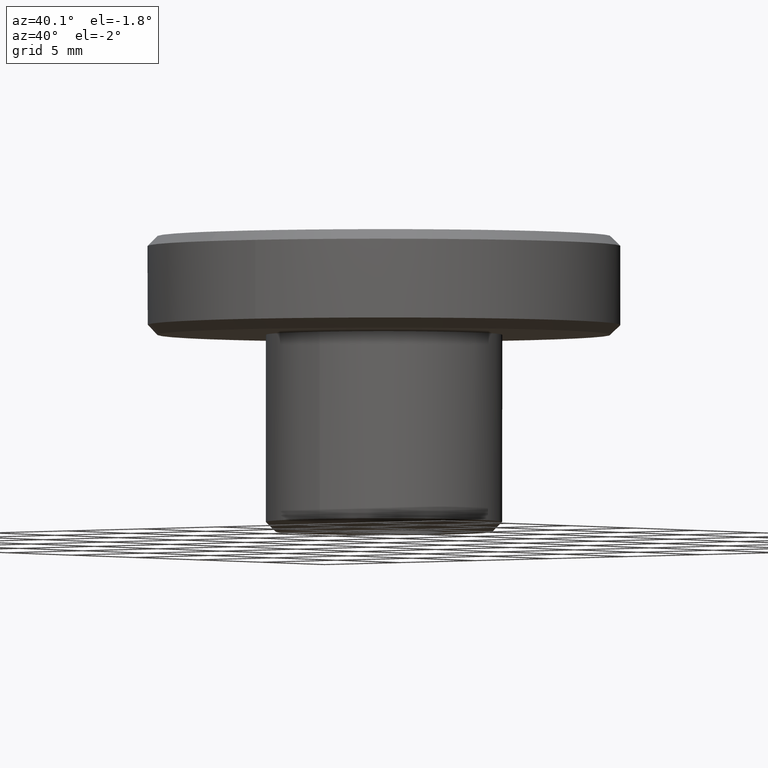
[diagram: clean part render]
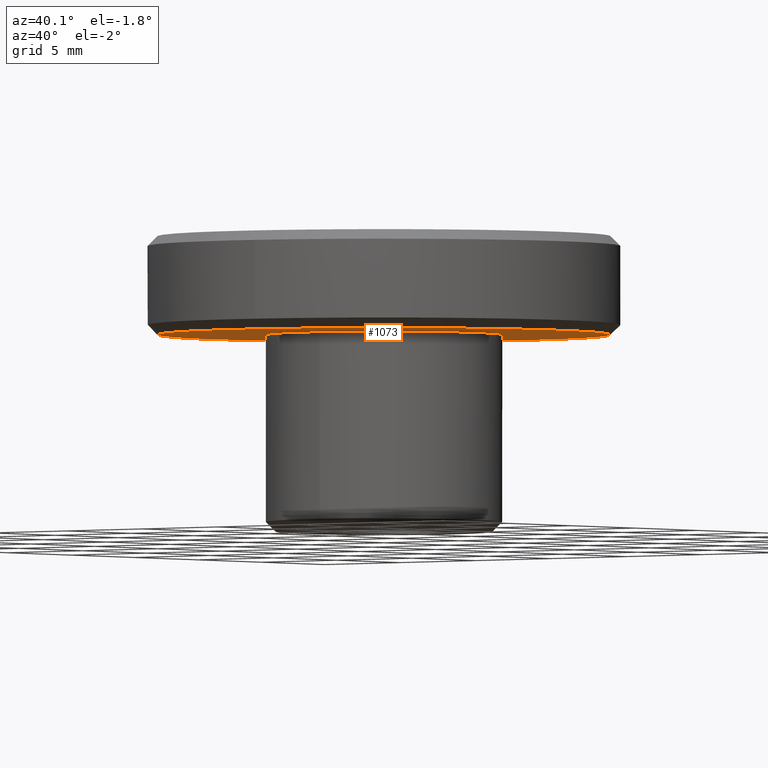
[diagram: same view with one face highlighted and labeled with its STEP entity id]
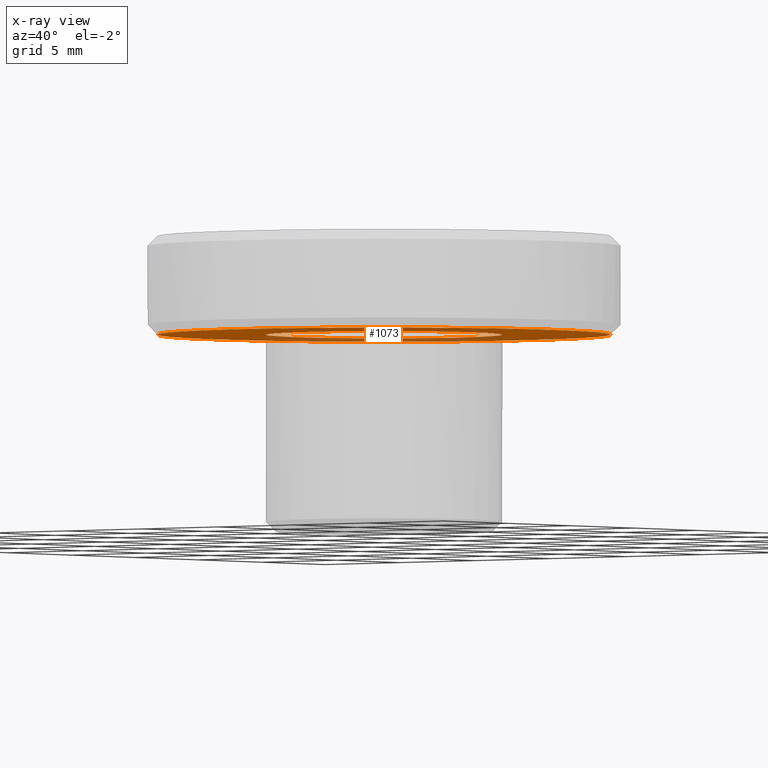
[diagram: x-ray of the same camera — body ghosted, the highlighted face saturated]
A machine part, auxiliary view. The second image highlights one B-rep face of the part: STEP entity #1073.
The next image is the same camera in x-ray: the body ghosted, the highlighted face saturated — about 24% of this face is hidden behind the body in this view.
In plain terms, the highlighted face is a freeform B-spline surface patch.
Its self-contained STEP definition (entity closure, byte-faithful):
#286=CARTESIAN_POINT('',(11.500000000000000,0.0,10.0));
#287=VERTEX_POINT('',#286);
#288=CARTESIAN_POINT('',(9.416960296174537,-6.600822583608174,10.000000000000030));
#289=VERTEX_POINT('',#288);
#290=CARTESIAN_POINT('',(11.500000000000000,0.0,10.0));
#291=CARTESIAN_POINT('',(11.500000000000000,-3.629086570737413,10.000000000000002));
#292=CARTESIAN_POINT('',(9.416960296174537,-6.600822583608175,10.000000000000030));
#300=(BOUNDED_CURVE()B_SPLINE_CURVE(2,(#290,#291,#292),.UNSPECIFIED.,.F.,.U.)B_SPLINE_CURVE_WITH_KNOTS((3,3),(0.0,0.098673726202874),.UNSPECIFIED.)CURVE()GEOMETRIC_REPRESENTATION_ITEM()RATIONAL_B_SPLINE_CURVE((1.0,0.884396538880492,0.860049271925871))REPRESENTATION_ITEM(''));
#301=EDGE_CURVE('',#287,#289,#300,.T.);
#303=CARTESIAN_POINT('',(-11.500000000000000,0.0,10.0));
#304=VERTEX_POINT('',#303);
#305=CARTESIAN_POINT('',(-11.500000000000000,0.0,10.0));
#306=CARTESIAN_POINT('',(-11.500000000000000,11.500000000000000,10.000000000000002));
#307=CARTESIAN_POINT('',(0.0,11.500000000000000,10.0));
#308=CARTESIAN_POINT('',(11.500000000000000,11.500000000000000,10.000000000000002));
#309=CARTESIAN_POINT('',(11.500000000000000,0.0,10.0));
#317=(BOUNDED_CURVE()B_SPLINE_CURVE(2,(#305,#306,#307,#308,#309),.UNSPECIFIED.,.F.,.U.)B_SPLINE_CURVE_WITH_KNOTS((3,2,3),(0.500000000000000,0.750000000000000,1.0),.UNSPECIFIED.)CURVE()GEOMETRIC_REPRESENTATION_ITEM()RATIONAL_B_SPLINE_CURVE((1.0,0.707106781186548,1.0,0.707106781186548,1.0))REPRESENTATION_ITEM(''));
#318=EDGE_CURVE('',#304,#287,#317,.T.);
#320=CARTESIAN_POINT('',(0.100355158253233,-11.499562115240730,10.000000000003020));
#321=VERTEX_POINT('',#320);
#322=CARTESIAN_POINT('',(0.100355158253233,-11.499562115240732,10.000000000003018));
#323=CARTESIAN_POINT('',(0.050178534459976,-11.500000000000004,10.0));
#324=CARTESIAN_POINT('',(0.0,-11.500000000000000,10.0));
#325=CARTESIAN_POINT('',(-11.500000000000000,-11.500000000000000,10.000000000000002));
#326=CARTESIAN_POINT('',(-11.500000000000000,0.0,10.0));
#334=(BOUNDED_CURVE()B_SPLINE_CURVE(2,(#322,#323,#324,#325,#326),.UNSPECIFIED.,.F.,.U.)B_SPLINE_CURVE_WITH_KNOTS((3,2,3),(0.248460105664342,0.250000000000000,0.500000000000000),.UNSPECIFIED.)CURVE()GEOMETRIC_REPRESENTATION_ITEM()RATIONAL_B_SPLINE_CURVE((0.996414028098853,0.998195901565586,1.0,0.707106781186548,1.0))REPRESENTATION_ITEM(''));
#335=EDGE_CURVE('',#321,#304,#334,.T.);
#430=CARTESIAN_POINT('',(9.416960296174537,-6.600822583608174,10.000000000000032));
#431=CARTESIAN_POINT('',(6.019393967060633,-11.447907446082395,9.999999999999998));
#432=CARTESIAN_POINT('',(0.100355158253233,-11.499562115240730,10.000000000003018));
#440=(BOUNDED_CURVE()B_SPLINE_CURVE(2,(#430,#431,#432),.UNSPECIFIED.,.F.,.U.)B_SPLINE_CURVE_WITH_KNOTS((3,3),(0.098673726202873,0.248460105664342),.UNSPECIFIED.)CURVE()GEOMETRIC_REPRESENTATION_ITEM()RATIONAL_B_SPLINE_CURVE((0.860049271925871,0.823090203820786,0.996414028098853))REPRESENTATION_ITEM(''));
#441=EDGE_CURVE('',#289,#321,#440,.T.);
#879=CARTESIAN_POINT('',(-0.052354501206624,5.999771579500440,10.000000000000121));
#880=VERTEX_POINT('',#879);
#886=CARTESIAN_POINT('',(6.0,0.0,10.000000000000121));
#887=VERTEX_POINT('',#886);
#888=CARTESIAN_POINT('',(-0.052354501206624,5.999771579500440,10.000000000000121));
#889=CARTESIAN_POINT('',(-0.026177748897856,6.0,10.000000000000121));
#890=CARTESIAN_POINT('',(0.0,6.0,10.000000000000121));
#891=CARTESIAN_POINT('',(6.0,6.0,10.000000000000121));
#892=CARTESIAN_POINT('',(6.0,0.0,10.000000000000121));
#900=(BOUNDED_CURVE()B_SPLINE_CURVE(2,(#888,#889,#890,#891,#892),.UNSPECIFIED.,.F.,.U.)B_SPLINE_CURVE_WITH_KNOTS((3,2,3),(0.248460243994745,0.250000000000000,0.500000000000000),.UNSPECIFIED.)CURVE()GEOMETRIC_REPRESENTATION_ITEM()RATIONAL_B_SPLINE_CURVE((0.996414348234342,0.998196063629734,1.0,0.707106781186548,1.0))REPRESENTATION_ITEM(''));
#901=EDGE_CURVE('',#880,#887,#900,.T.);
#903=CARTESIAN_POINT('',(0.744762948384162,-5.953597916444146,10.000000000000121));
#904=VERTEX_POINT('',#903);
#905=CARTESIAN_POINT('',(6.0,0.0,10.000000000000121));
#906=CARTESIAN_POINT('',(6.0,-5.296196140923553,10.000000000000119));
#907=CARTESIAN_POINT('',(0.744762948384162,-5.953597916444146,10.000000000000123));
#915=(BOUNDED_CURVE()B_SPLINE_CURVE(2,(#905,#906,#907),.UNSPECIFIED.,.F.,.U.)B_SPLINE_CURVE_WITH_KNOTS((3,3),(0.500000000000000,0.728526214478538),.UNSPECIFIED.)CURVE()GEOMETRIC_REPRESENTATION_ITEM()RATIONAL_B_SPLINE_CURVE((1.0,0.732264885832511,0.954005708654425))REPRESENTATION_ITEM(''));
#916=EDGE_CURVE('',#887,#904,#915,.T.);
#951=CARTESIAN_POINT('',(-6.0,0.0,10.000000000000121));
#952=VERTEX_POINT('',#951);
#953=CARTESIAN_POINT('',(0.744762948384162,-5.953597916444146,10.000000000000123));
#954=CARTESIAN_POINT('',(0.373827003513187,-6.000000000000001,10.000000000000123));
#955=CARTESIAN_POINT('',(0.0,-6.0,10.000000000000121));
#956=CARTESIAN_POINT('',(-6.0,-6.0,10.000000000000121));
#957=CARTESIAN_POINT('',(-6.0,0.0,10.000000000000121));
#965=(BOUNDED_CURVE()B_SPLINE_CURVE(2,(#953,#954,#955,#956,#957),.UNSPECIFIED.,.F.,.U.)B_SPLINE_CURVE_WITH_KNOTS((3,2,3),(0.728526214478538,0.750000000000000,1.0),.UNSPECIFIED.)CURVE()GEOMETRIC_REPRESENTATION_ITEM()RATIONAL_B_SPLINE_CURVE((0.954005708654425,0.974841895354037,1.0,0.707106781186548,1.0))REPRESENTATION_ITEM(''));
#966=EDGE_CURVE('',#904,#952,#965,.T.);
#968=CARTESIAN_POINT('',(-6.0,0.0,10.000000000000121));
#969=CARTESIAN_POINT('',(-6.000000000000002,5.947871934771303,10.000000000000123));
#970=CARTESIAN_POINT('',(-0.052354501206624,5.999771579500440,10.000000000000121));
#978=(BOUNDED_CURVE()B_SPLINE_CURVE(2,(#968,#969,#970),.UNSPECIFIED.,.F.,.U.)B_SPLINE_CURVE_WITH_KNOTS((3,3),(0.0,0.248460243994745),.UNSPECIFIED.)CURVE()GEOMETRIC_REPRESENTATION_ITEM()RATIONAL_B_SPLINE_CURVE((1.0,0.708910717556814,0.996414348234342))REPRESENTATION_ITEM(''));
#979=EDGE_CURVE('',#952,#880,#978,.T.);
#1056=CARTESIAN_POINT('',(-12.648849955421539,-12.648390504168120,10.0));
#1057=CARTESIAN_POINT('',(12.648850572329611,-12.648390504168120,10.0));
#1058=CARTESIAN_POINT('',(-12.648849955421539,12.648828714536270,10.0));
#1059=CARTESIAN_POINT('',(12.648850572329611,12.648828714536270,10.0));
#1060=B_SPLINE_SURFACE_WITH_KNOTS('',1,1,((#1056,#1058),(#1057,#1059)),.UNSPECIFIED.,.F.,.F.,.U.,(2,2),(2,2),(0.0,25.297700527751150),(0.0,25.297219218704392),.UNSPECIFIED.);
#1061=ORIENTED_EDGE('',*,*,#301,.T.);
#1062=ORIENTED_EDGE('',*,*,#441,.T.);
#1063=ORIENTED_EDGE('',*,*,#335,.T.);
#1064=ORIENTED_EDGE('',*,*,#318,.T.);
#1065=EDGE_LOOP('',(#1061,#1062,#1063,#1064));
#1066=FACE_OUTER_BOUND('',#1065,.T.);
#1067=ORIENTED_EDGE('',*,*,#979,.F.);
#1068=ORIENTED_EDGE('',*,*,#966,.F.);
#1069=ORIENTED_EDGE('',*,*,#916,.F.);
#1070=ORIENTED_EDGE('',*,*,#901,.F.);
#1071=EDGE_LOOP('',(#1067,#1068,#1069,#1070));
#1072=FACE_BOUND('',#1071,.T.);
#1073=ADVANCED_FACE('',(#1066,#1072),#1060,.F.);